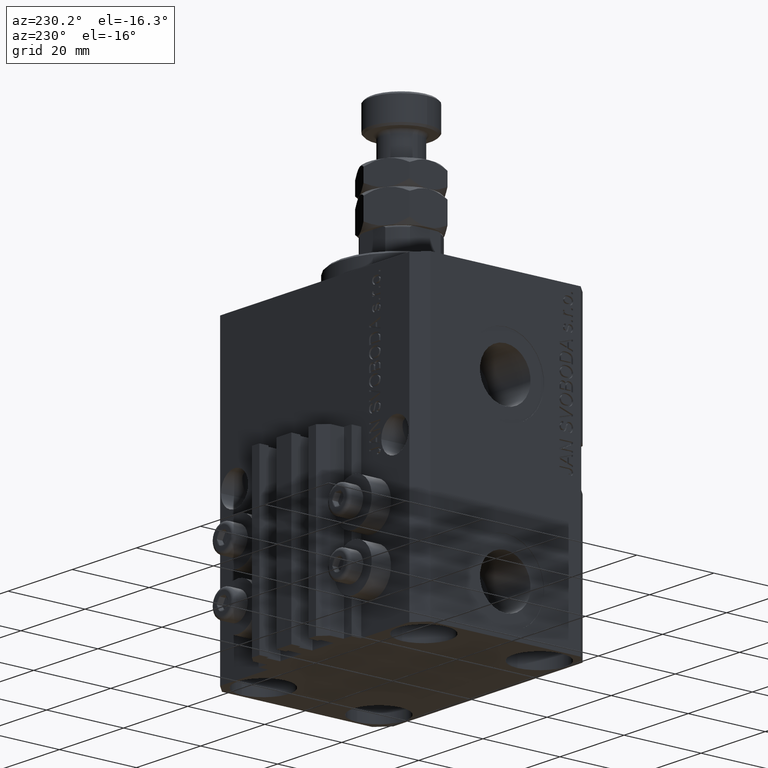
[diagram: clean part render]
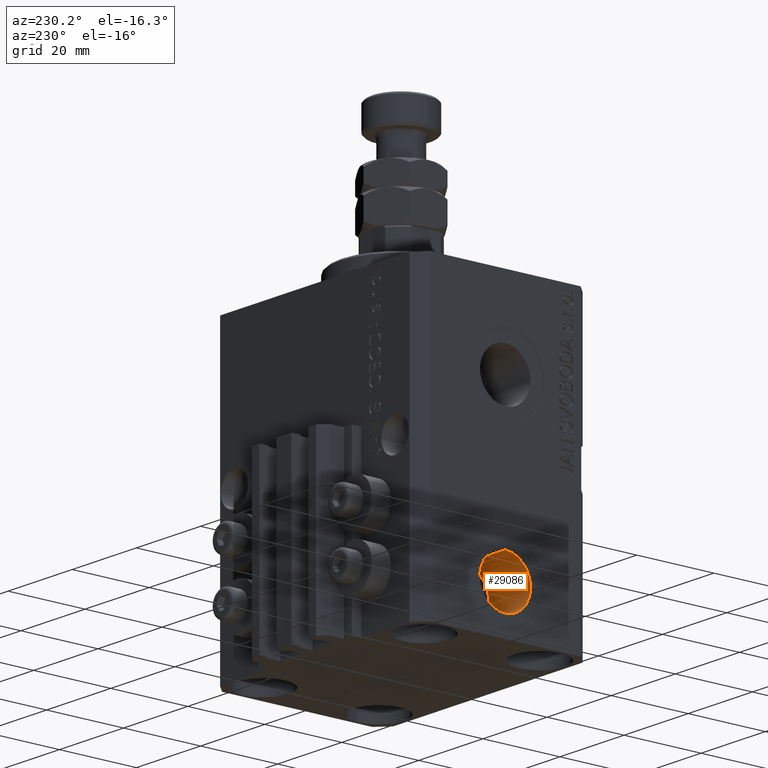
[diagram: same view with one face highlighted and labeled with its STEP entity id]
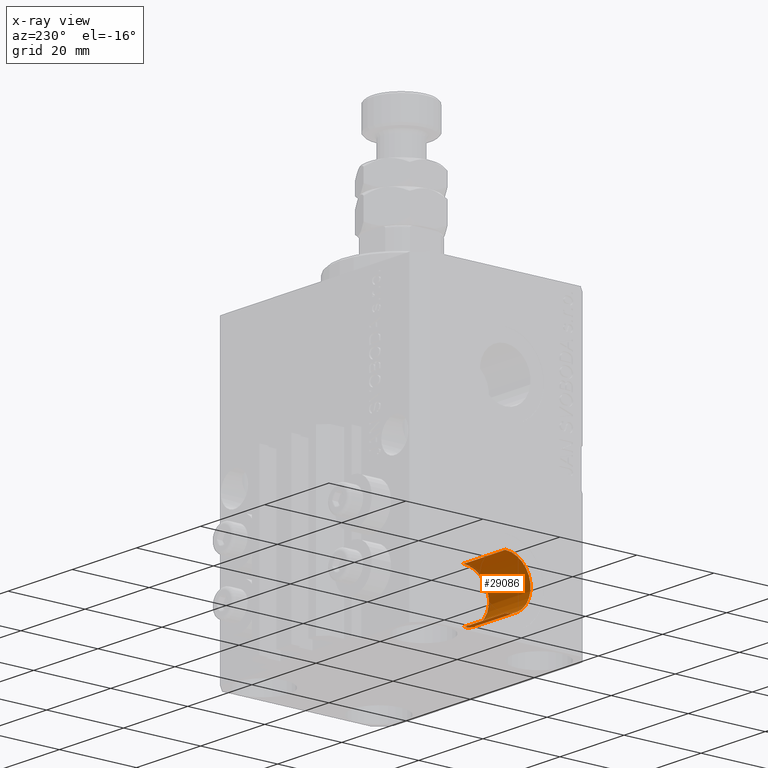
[diagram: x-ray of the same camera — body ghosted, the highlighted face saturated]
A machine part, auxiliary view. The second image highlights one B-rep face of the part: STEP entity #29086.
The next image is the same camera in x-ray: the body ghosted, the highlighted face saturated — about 3% of this face is hidden behind the body in this view.
In plain terms, the highlighted cylindrical surface (edge-blend (fillet) strip) has radius 6.58 mm, axis along (-1, -0, -0).
Its self-contained STEP definition (entity closure, byte-faithful):
#695 = CARTESIAN_POINT ( 'NONE',  ( -19.39999999999650271, -6.133076310068269336E-15, -71.57999999999999829 ) ) ;
#2614 = ORIENTED_EDGE ( 'NONE', *, *, #19426, .F. ) ;
#6872 = CARTESIAN_POINT ( 'NONE',  ( -19.39999999999650271, -6.938893903907228378E-15, -65.00000000000000000 ) ) ;
#7918 = CARTESIAN_POINT ( 'NONE',  ( -19.39999999999650271, -6.133076310068269336E-15, -71.57999999999999829 ) ) ;
#7966 = EDGE_CURVE ( 'NONE', #39606, #32303, #24964, .T. ) ;
#9814 = DIRECTION ( 'NONE',  ( -1.000000000000000000, 0.000000000000000000, 0.000000000000000000 ) ) ;
#9953 = ORIENTED_EDGE ( 'NONE', *, *, #7966, .T. ) ;
#11026 = CARTESIAN_POINT ( 'NONE',  ( -32.39999999999650271, -6.133076310068269336E-15, -71.57999999999999829 ) ) ;
#16060 = VECTOR ( 'NONE', #24950, 1000.000000000000000 ) ;
#17647 = CARTESIAN_POINT ( 'NONE',  ( -32.39999999999650271, -6.938893903907228378E-15, -65.00000000000000000 ) ) ;
#17957 = LINE ( 'NONE', #28941, #16060 ) ;
#19426 = EDGE_CURVE ( 'NONE', #43806, #31035, #45150, .T. ) ;
#21162 = DIRECTION ( 'NONE',  ( 0.000000000000000000, 0.000000000000000000, 1.000000000000000000 ) ) ;
#22579 = AXIS2_PLACEMENT_3D ( 'NONE', #17647, #39890, #21162 ) ;
#23599 = ORIENTED_EDGE ( 'NONE', *, *, #32985, .T. ) ;
#24950 = DIRECTION ( 'NONE',  ( -1.000000000000000000, -0.000000000000000000, -0.000000000000000000 ) ) ;
#24964 = CIRCLE ( 'NONE', #22579, 6.580000000000002736 ) ;
#26350 = CYLINDRICAL_SURFACE ( 'NONE', #40611, 6.580000000000002736 ) ;
#28151 = DIRECTION ( 'NONE',  ( -1.000000000000000000, -0.000000000000000000, -0.000000000000000000 ) ) ;
#28423 = AXIS2_PLACEMENT_3D ( 'NONE', #47990, #9814, #33520 ) ;
#28941 = CARTESIAN_POINT ( 'NONE',  ( -19.39999999999650271, -6.938893903907228378E-15, -58.42000000000000171 ) ) ;
#29086 = ADVANCED_FACE ( 'NONE', ( #45069 ), #26350, .F. ) ;
#30665 = ORIENTED_EDGE ( 'NONE', *, *, #36271, .F. ) ;
#31035 = VERTEX_POINT ( 'NONE', #32678 ) ;
#32303 = VERTEX_POINT ( 'NONE', #45068 ) ;
#32678 = CARTESIAN_POINT ( 'NONE',  ( -19.39999999999650271, -6.938893903907228378E-15, -58.42000000000000171 ) ) ;
#32985 = EDGE_CURVE ( 'NONE', #43806, #39606, #34903, .T. ) ;
#33520 = DIRECTION ( 'NONE',  ( 0.000000000000000000, 0.000000000000000000, 1.000000000000000000 ) ) ;
#34903 = LINE ( 'NONE', #695, #44037 ) ;
#36271 = EDGE_CURVE ( 'NONE', #31035, #32303, #17957, .T. ) ;
#37065 = EDGE_LOOP ( 'NONE', ( #2614, #23599, #9953, #30665 ) ) ;
#37841 = DIRECTION ( 'NONE',  ( 0.000000000000000000, 0.000000000000000000, 1.000000000000000000 ) ) ;
#39606 = VERTEX_POINT ( 'NONE', #11026 ) ;
#39890 = DIRECTION ( 'NONE',  ( -1.000000000000000000, 0.000000000000000000, 0.000000000000000000 ) ) ;
#40611 = AXIS2_PLACEMENT_3D ( 'NONE', #6872, #40846, #37841 ) ;
#40846 = DIRECTION ( 'NONE',  ( -1.000000000000000000, -0.000000000000000000, -0.000000000000000000 ) ) ;
#43806 = VERTEX_POINT ( 'NONE', #7918 ) ;
#44037 = VECTOR ( 'NONE', #28151, 1000.000000000000000 ) ;
#45068 = CARTESIAN_POINT ( 'NONE',  ( -32.39999999999650271, -6.938893903907228378E-15, -58.42000000000000171 ) ) ;
#45069 = FACE_OUTER_BOUND ( 'NONE', #37065, .T. ) ;
#45150 = CIRCLE ( 'NONE', #28423, 6.580000000000002736 ) ;
#47990 = CARTESIAN_POINT ( 'NONE',  ( -19.39999999999650271, -6.938893903907228378E-15, -65.00000000000000000 ) ) ;